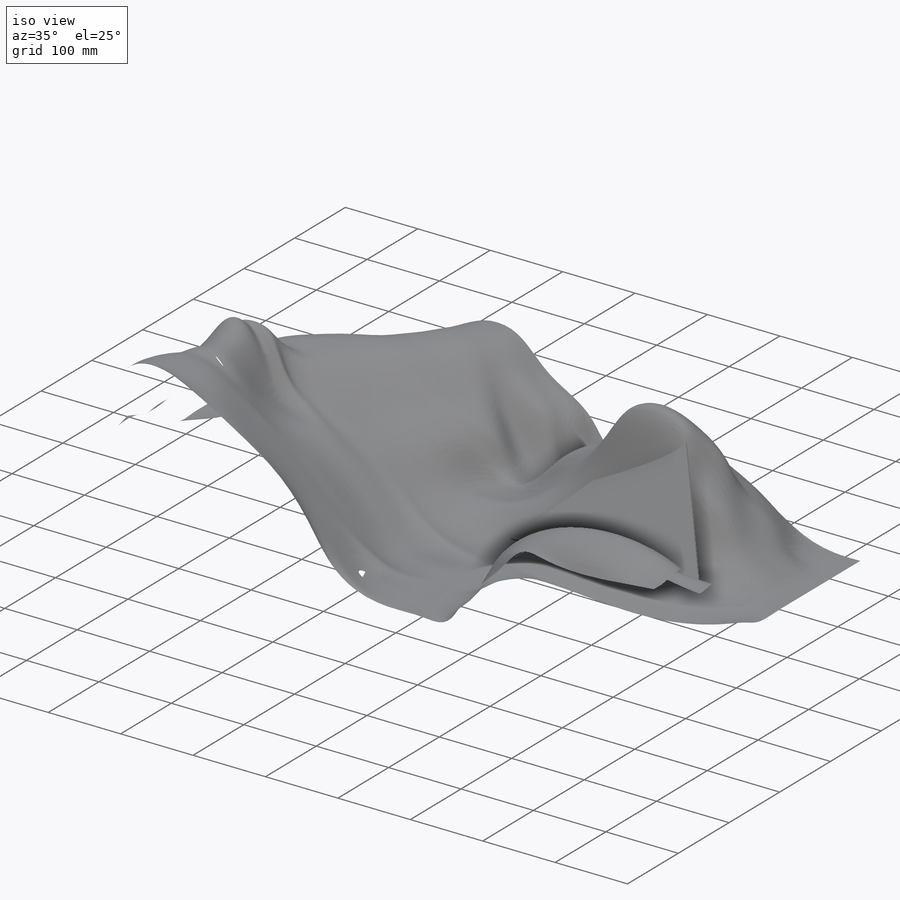
[diagram: iso view]
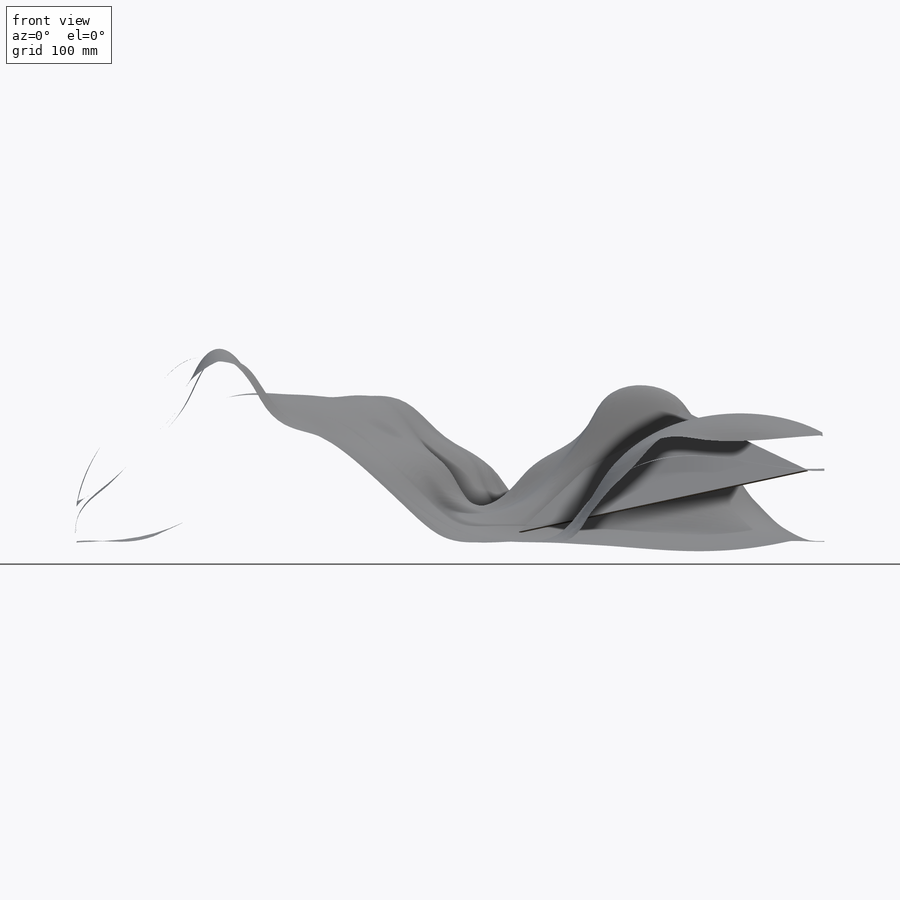
[diagram: front view]
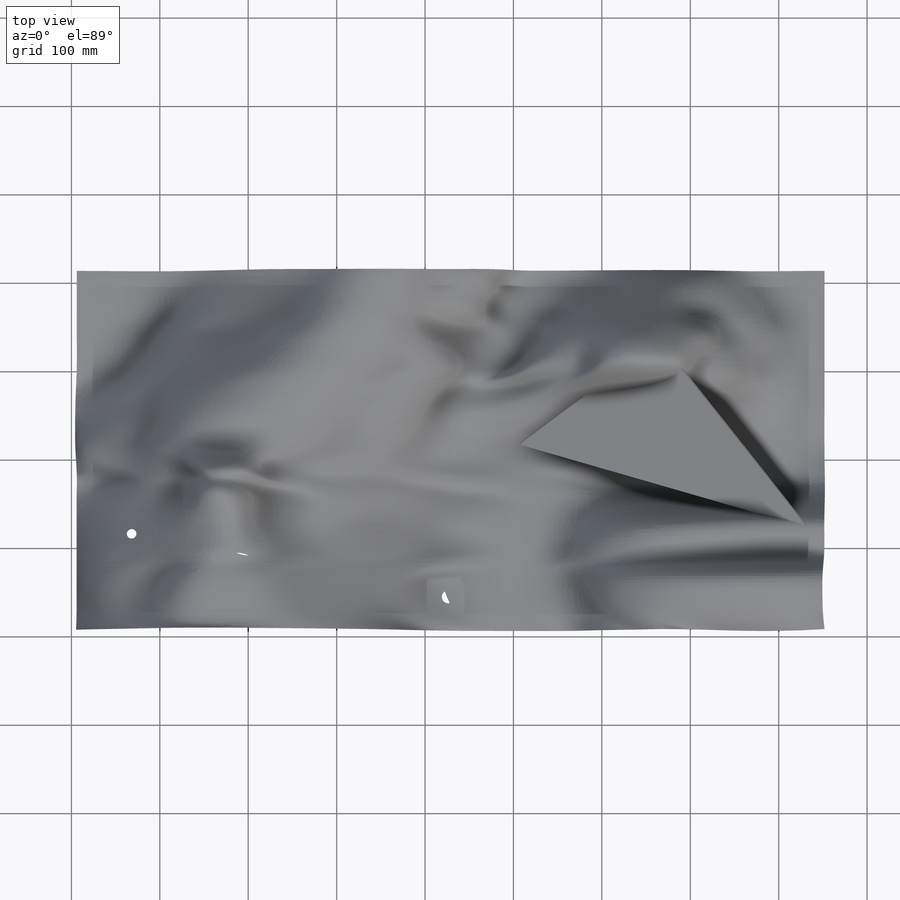
[diagram: top view]
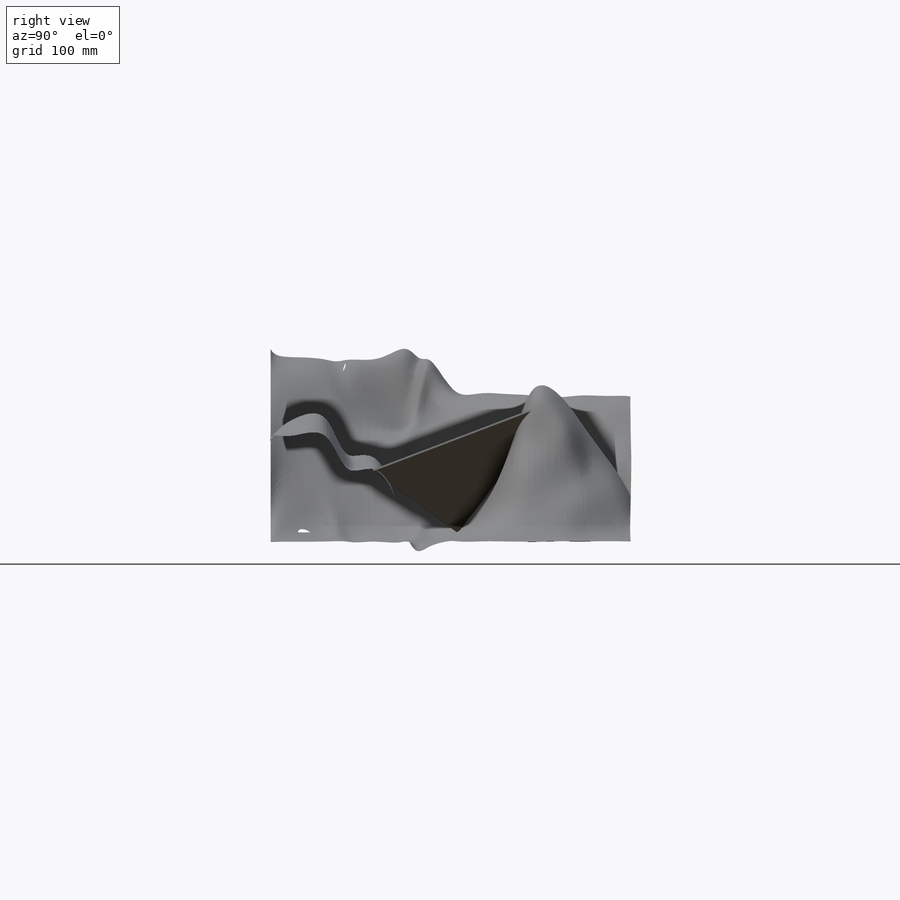
[diagram: right view]
SOLIDWORKS PART (.sldprt)
format: sldprt  version: not decoded by parser v0  size: 3,200,000 bytes
history: native  units: mm
features: sketch x31, plane x16, extrude x3, material x1, sweep x1 (+21 scaffold rows collapsed; 5 parser-record rows omitted)
feature tree (78):
  scaffold x21  (default folders/planes/origin — collapsed)
  material  "Material <not specified>"
  sketch  "Image  & CS Lines"  dims[D1=30.0mm]
  parser-record x5  (decoder bookkeeping rows leaked as tree rows — omitted from the tree; the rows remain in map.json)
  plane  "20"  Offset=20mm
  sketch  "Sketch2"
  plane  "30"  Offset=30mm
  sketch  "Sketch3"
  plane  "40"  Offset=60mm
  sketch  "Sketch4"
  plane  "50"  Offset=100mm
  sketch  "Sketch5"
  plane  "60"  Offset=140mm
  sketch  "Sketch6"
  plane  "70"  Offset=180mm
  sketch  "Sketch7"
  plane  "80"  Offset=220mm
  sketch  "Sketch8"
  plane  "Plane8"  Offset=260mm
  sketch  "Sketch10"
  sketch  "3DSketch1"
  sketch  "3DSketch2"
  sketch  "3DSketch3"
  sketch  "3DSketch4"
  sketch  "3DSketch5"
  sketch  "3DSketch6"
  sketch  "Sketch11"
  sketch  "Sketch12"
  extrude  "Below Ground"  Depth=50mm
  plane  "Section D-E Cutting Plane"  Offset=330mm
  plane  "Plane14"  Offset=300mm
  sketch  "A"
  sketch  "B"
  sketch  "C"
  sketch  "ABC"
  plane  "Outcrop ABC Plane"
  sketch  "Sketch17"
  extrude  "ABC Outcrop"  Depth=1mm
  plane  "Plane9"  Offset=60mm
  sketch  "Sketch18"
  plane  "Plane10"  Offset=90mm
  sketch  "Sketch19"
  plane  "Plane11"  Offset=30mm
  sketch  "Sketch20"
  extrude  "School Receiver"  Depth=36mm
  sketch  "LOS"
  sketch  "Image1"
  sketch  "Sketch Picture2"  dims[D1=~240.397011mm]
  plane  "Horizontal Plane through A"
  sketch  "Strike"
  sketch  "Dip"
  plane  "Plane15"
  sketch  "Sketch21"
  sweep  "Line of Sight"
decode coverage: 5 of 35 modeling features carry decoded parameters
note: ~ marks probable driven/reference dimensions
note: suppression state not decoded; provenance and decode notes live in map.json
